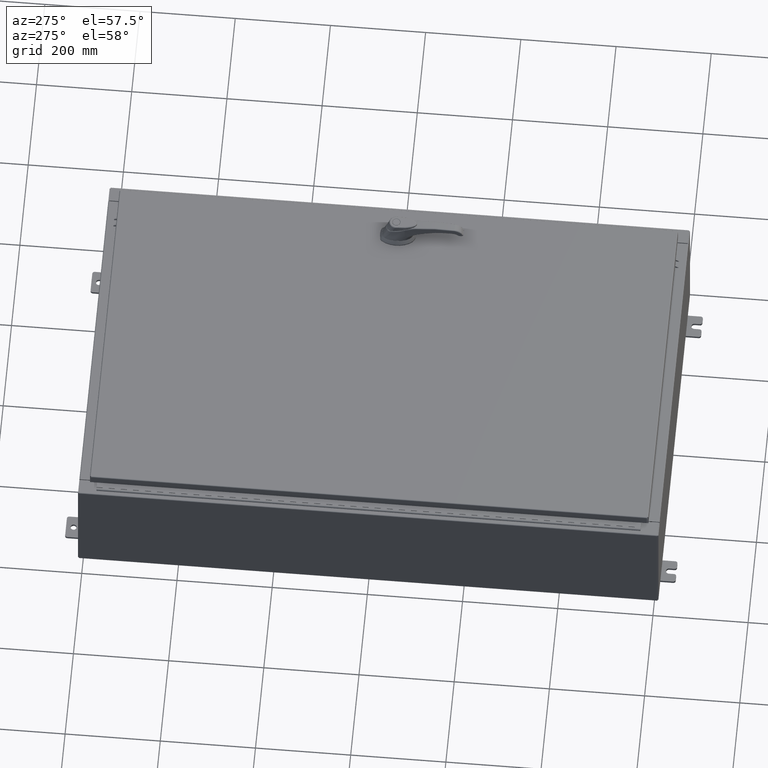
[diagram: clean part render]
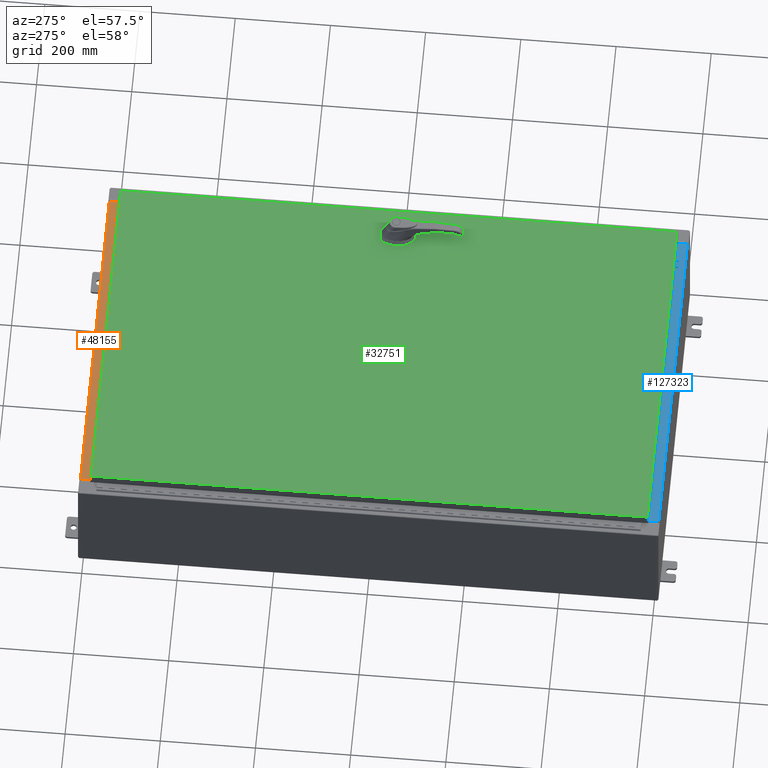
[diagram: same view with three faces highlighted in distinct colors, each labeled with its STEP entity id]
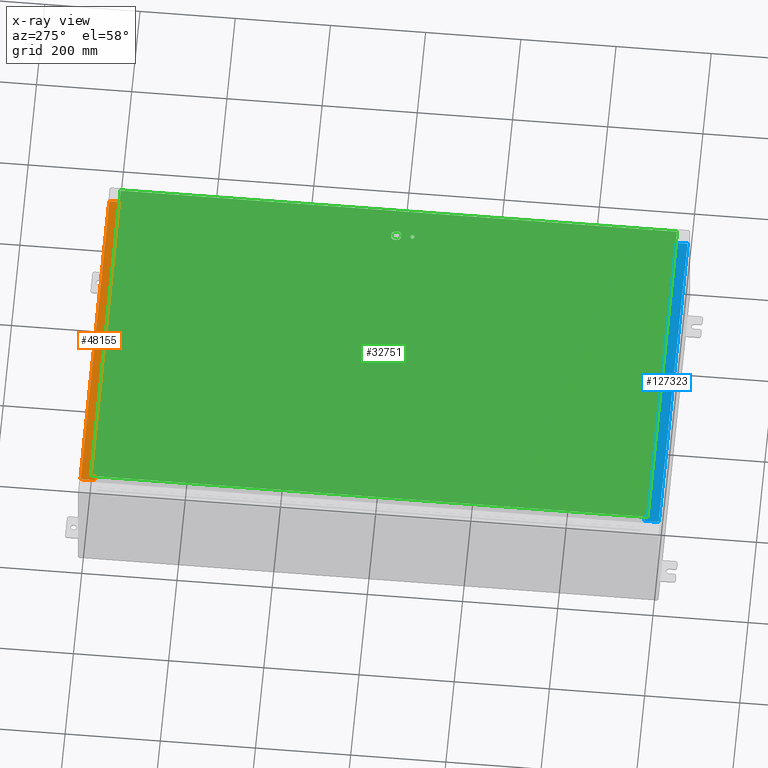
[diagram: x-ray of the same camera — body ghosted, the three highlighted faces saturated]
A machine part, auxiliary view with three faces highlighted in distinct colors.
The next image is the same camera in x-ray (body ghosted, the three faces saturated) — at least one of them is partly hidden behind the body in this view.
Their STEP definitions:

[orange] entity #48155 — the highlighted planar face has unit normal (0, 0, 1).
#4190 = EDGE_CURVE ( 'NONE', #29632, #78011, #5099, .T. ) ;
#5099 = LINE ( 'NONE', #95312, #132149 ) ;
#5529 = CARTESIAN_POINT ( 'NONE',  ( 13.63719999999999800, -0.08770000000000047200, 5.000000000000000000 ) ) ;
#9009 = DIRECTION ( 'NONE',  ( -1.000000000000000000, -4.006464660875052000E-017, 1.428858021605520200E-031 ) ) ;
#12507 = ORIENTED_EDGE ( 'NONE', *, *, #4190, .T. ) ;
#15864 = ORIENTED_EDGE ( 'NONE', *, *, #121329, .F. ) ;
#24144 = PLANE ( 'NONE',  #130623 ) ;
#24595 = DIRECTION ( 'NONE',  ( -0.0000000000000000000, -1.000000000000000000, 3.566381192773190000E-015 ) ) ;
#26260 = VERTEX_POINT ( 'NONE', #105447 ) ;
#29632 = VERTEX_POINT ( 'NONE', #5529 ) ;
#33888 = EDGE_LOOP ( 'NONE', ( #82521, #129009, #15864, #12507 ) ) ;
#40150 = CARTESIAN_POINT ( 'NONE',  ( 13.63719999999999800, -1.287299999999999900, 5.000000000000002700 ) ) ;
#43969 = VECTOR ( 'NONE', #24595, 39.37007874015748100 ) ;
#48155 = ADVANCED_FACE ( 'NONE', ( #102758 ), #24144, .T. ) ;
#49414 = LINE ( 'NONE', #85349, #76944 ) ;
#55150 = DIRECTION ( 'NONE',  ( 0.0000000000000000000, 3.566381192773190000E-015, 1.000000000000000000 ) ) ;
#55163 = CARTESIAN_POINT ( 'NONE',  ( 13.63719999999999800, -1.300299999999999800, 5.000000000000004400 ) ) ;
#71291 = DIRECTION ( 'NONE',  ( -1.000000000000000000, 0.0000000000000000000, 0.0000000000000000000 ) ) ;
#71436 = EDGE_CURVE ( 'NONE', #132170, #26260, #73592, .T. ) ;
#73592 = LINE ( 'NONE', #40150, #80070 ) ;
#75441 = CARTESIAN_POINT ( 'NONE',  ( 13.63719999999999800, -1.287299999999999900, 5.000000000000004400 ) ) ;
#75549 = CARTESIAN_POINT ( 'NONE',  ( 0.0000000000000000000, 1.782631094477737600E-014, 5.000000000000000000 ) ) ;
#76944 = VECTOR ( 'NONE', #95634, 39.37007874015748100 ) ;
#78011 = VERTEX_POINT ( 'NONE', #126827 ) ;
#80070 = VECTOR ( 'NONE', #71291, 39.37007874015748100 ) ;
#82521 = ORIENTED_EDGE ( 'NONE', *, *, #109314, .F. ) ;
#85349 = CARTESIAN_POINT ( 'NONE',  ( -13.63720000000000400, -0.07469999999999973900, 5.000000000000000000 ) ) ;
#95312 = CARTESIAN_POINT ( 'NONE',  ( 3.513669507588167300E-018, -0.08770000000000081900, 5.000000000000000000 ) ) ;
#95634 = DIRECTION ( 'NONE',  ( -0.0000000000000000000, 1.000000000000000000, -3.566381192773190000E-015 ) ) ;
#102758 = FACE_OUTER_BOUND ( 'NONE', #33888, .T. ) ;
#105447 = CARTESIAN_POINT ( 'NONE',  ( -13.63720000000000400, -1.287299999999999200, 5.000000000000004400 ) ) ;
#109314 = EDGE_CURVE ( 'NONE', #26260, #78011, #49414, .T. ) ;
#121329 = EDGE_CURVE ( 'NONE', #29632, #132170, #126114, .T. ) ;
#126114 = LINE ( 'NONE', #55163, #43969 ) ;
#126827 = CARTESIAN_POINT ( 'NONE',  ( -13.63720000000000400, -0.08770000000000081900, 5.000000000000000000 ) ) ;
#127160 = DIRECTION ( 'NONE',  ( 0.0000000000000000000, -1.000000000000000000, 3.566381192773190000E-015 ) ) ;
#129009 = ORIENTED_EDGE ( 'NONE', *, *, #71436, .F. ) ;
#130623 = AXIS2_PLACEMENT_3D ( 'NONE', #75549, #55150, #127160 ) ;
#132149 = VECTOR ( 'NONE', #9009, 39.37007874015748100 ) ;
#132170 = VERTEX_POINT ( 'NONE', #75441 ) ;

[blue] entity #127323 — the highlighted planar face has unit normal (-0, -0, 1).
#2289 = CARTESIAN_POINT ( 'NONE',  ( 0.0000000000000000000, 1.782631094477737600E-014, 5.000000000000000000 ) ) ;
#12595 = DIRECTION ( 'NONE',  ( 0.0000000000000000000, -1.000000000000000000, 3.566381192773190000E-015 ) ) ;
#15502 = CARTESIAN_POINT ( 'NONE',  ( 13.63719999999999800, -0.08770000000000047200, 5.000000000000000000 ) ) ;
#17195 = LINE ( 'NONE', #93339, #41282 ) ;
#20585 = CARTESIAN_POINT ( 'NONE',  ( 13.63719999999999800, -1.287299999999999900, 5.000000000000002700 ) ) ;
#20922 = CARTESIAN_POINT ( 'NONE',  ( -13.63720000000000400, -0.07469999999999973900, 5.000000000000000000 ) ) ;
#26986 = EDGE_CURVE ( 'NONE', #62944, #76798, #100794, .T. ) ;
#33518 = CARTESIAN_POINT ( 'NONE',  ( -13.63720000000000400, -0.08770000000000081900, 5.000000000000000000 ) ) ;
#38080 = EDGE_CURVE ( 'NONE', #72880, #76798, #57800, .T. ) ;
#38153 = ORIENTED_EDGE ( 'NONE', *, *, #38080, .T. ) ;
#39312 = ORIENTED_EDGE ( 'NONE', *, *, #95661, .F. ) ;
#41282 = VECTOR ( 'NONE', #41965, 39.37007874015748100 ) ;
#41965 = DIRECTION ( 'NONE',  ( -0.0000000000000000000, -1.000000000000000000, 3.566381192773190000E-015 ) ) ;
#52138 = DIRECTION ( 'NONE',  ( -1.000000000000000000, -4.006464660875052000E-017, 1.428858021605520200E-031 ) ) ;
#57800 = LINE ( 'NONE', #113875, #85258 ) ;
#62336 = DIRECTION ( 'NONE',  ( -0.0000000000000000000, 1.000000000000000000, -3.566381192773190000E-015 ) ) ;
#62944 = VERTEX_POINT ( 'NONE', #82889 ) ;
#72880 = VERTEX_POINT ( 'NONE', #15502 ) ;
#74283 = DIRECTION ( 'NONE',  ( 0.0000000000000000000, 3.566381192773190000E-015, 1.000000000000000000 ) ) ;
#75976 = VERTEX_POINT ( 'NONE', #131416 ) ;
#76678 = VECTOR ( 'NONE', #62336, 39.37007874015748100 ) ;
#76798 = VERTEX_POINT ( 'NONE', #33518 ) ;
#82889 = CARTESIAN_POINT ( 'NONE',  ( -13.63720000000000400, -1.287299999999999200, 5.000000000000004400 ) ) ;
#85258 = VECTOR ( 'NONE', #52138, 39.37007874015748100 ) ;
#92626 = DIRECTION ( 'NONE',  ( -1.000000000000000000, 0.0000000000000000000, 0.0000000000000000000 ) ) ;
#93339 = CARTESIAN_POINT ( 'NONE',  ( 13.63719999999999800, -1.300299999999999800, 5.000000000000004400 ) ) ;
#94387 = VECTOR ( 'NONE', #92626, 39.37007874015748100 ) ;
#94934 = EDGE_CURVE ( 'NONE', #75976, #62944, #121748, .T. ) ;
#95661 = EDGE_CURVE ( 'NONE', #72880, #75976, #17195, .T. ) ;
#98916 = AXIS2_PLACEMENT_3D ( 'NONE', #2289, #74283, #12595 ) ;
#100794 = LINE ( 'NONE', #20922, #76678 ) ;
#105371 = ORIENTED_EDGE ( 'NONE', *, *, #26986, .F. ) ;
#106041 = ORIENTED_EDGE ( 'NONE', *, *, #94934, .F. ) ;
#113875 = CARTESIAN_POINT ( 'NONE',  ( 3.513669507588167300E-018, -0.08770000000000081900, 5.000000000000000000 ) ) ;
#115173 = PLANE ( 'NONE',  #98916 ) ;
#121748 = LINE ( 'NONE', #20585, #94387 ) ;
#126398 = EDGE_LOOP ( 'NONE', ( #105371, #106041, #39312, #38153 ) ) ;
#127323 = ADVANCED_FACE ( 'NONE', ( #133347 ), #115173, .T. ) ;
#131416 = CARTESIAN_POINT ( 'NONE',  ( 13.63719999999999800, -1.287299999999999900, 5.000000000000004400 ) ) ;
#133347 = FACE_OUTER_BOUND ( 'NONE', #126398, .T. ) ;

[green] entity #32751 — the highlighted planar face has unit normal (0, 0, -1).
#672 = EDGE_CURVE ( 'NONE', #24582, #48429, #19857, .T. ) ;
#939 = CARTESIAN_POINT ( 'NONE',  ( -13.99029999999999800, 23.00630000000001000, -2.048885995248197400E-016 ) ) ;
#2196 = FACE_BOUND ( 'NONE', #66400, .T. ) ;
#3682 = EDGE_CURVE ( 'NONE', #47430, #24582, #43716, .T. ) ;
#4607 = VECTOR ( 'NONE', #46874, 39.37007874015748100 ) ;
#4666 = LINE ( 'NONE', #64334, #110967 ) ;
#5149 = AXIS2_PLACEMENT_3D ( 'NONE', #77985, #16278, #88290 ) ;
#6343 = VERTEX_POINT ( 'NONE', #24098 ) ;
#6467 = CARTESIAN_POINT ( 'NONE',  ( -13.99029999999999800, 23.00630000000000300, -2.048885995248197400E-016 ) ) ;
#6787 = VECTOR ( 'NONE', #93702, 39.37007874015748100 ) ;
#9664 = CARTESIAN_POINT ( 'NONE',  ( 11.57799999999999800, 0.0000000000000000000, 0.0000000000000000000 ) ) ;
#10267 = DIRECTION ( 'NONE',  ( 0.0000000000000000000, -1.000000000000000000, 0.0000000000000000000 ) ) ;
#10632 = DIRECTION ( 'NONE',  ( -0.0000000000000000000, 0.0000000000000000000, 1.000000000000000000 ) ) ;
#11832 = FACE_BOUND ( 'NONE', #123777, .T. ) ;
#12288 = LINE ( 'NONE', #113636, #124945 ) ;
#12452 = DIRECTION ( 'NONE',  ( -0.0000000000000000000, 0.0000000000000000000, 1.000000000000000000 ) ) ;
#12675 = EDGE_CURVE ( 'NONE', #97313, #29899, #12288, .T. ) ;
#13300 = VERTEX_POINT ( 'NONE', #82756 ) ;
#14292 = DIRECTION ( 'NONE',  ( 0.0000000000000000000, 0.0000000000000000000, -1.000000000000000000 ) ) ;
#14727 = PLANE ( 'NONE',  #124587 ) ;
#16278 = DIRECTION ( 'NONE',  ( -0.0000000000000000000, 0.0000000000000000000, 1.000000000000000000 ) ) ;
#19857 = LINE ( 'NONE', #6467, #47197 ) ;
#19965 = DIRECTION ( 'NONE',  ( 1.000000000000000000, 0.0000000000000000000, 0.0000000000000000000 ) ) ;
#21358 = VERTEX_POINT ( 'NONE', #26514 ) ;
#23415 = CARTESIAN_POINT ( 'NONE',  ( 13.99029999999999800, 23.00630000000001000, 1.946441695485787500E-015 ) ) ;
#23548 = CARTESIAN_POINT ( 'NONE',  ( 11.77822737075630700, -0.4029999999999252000, 0.0000000000000000000 ) ) ;
#23991 = CARTESIAN_POINT ( 'NONE',  ( 11.57799999999999800, 0.0000000000000000000, 0.0000000000000000000 ) ) ;
#24098 = CARTESIAN_POINT ( 'NONE',  ( 11.98099999999992700, -0.2002273707563079800, 0.0000000000000000000 ) ) ;
#24582 = VERTEX_POINT ( 'NONE', #939 ) ;
#24701 = VERTEX_POINT ( 'NONE', #63857 ) ;
#25048 = CIRCLE ( 'NONE', #75998, 0.1715000000000011500 ) ;
#25504 = ORIENTED_EDGE ( 'NONE', *, *, #12675, .F. ) ;
#26514 = CARTESIAN_POINT ( 'NONE',  ( 11.17500000000007000, -0.2002273707563079800, 0.0000000000000000000 ) ) ;
#26913 = EDGE_CURVE ( 'NONE', #24701, #125900, #25048, .T. ) ;
#27254 = CARTESIAN_POINT ( 'NONE',  ( -13.99029999999999800, -23.00630000000000300, 1.946441695485787500E-015 ) ) ;
#29899 = VERTEX_POINT ( 'NONE', #71607 ) ;
#32471 = ORIENTED_EDGE ( 'NONE', *, *, #110394, .F. ) ;
#32751 = ADVANCED_FACE ( 'NONE', ( #2196, #108464, #11832 ), #14727, .F. ) ;
#34233 = LINE ( 'NONE', #125596, #61611 ) ;
#34336 = DIRECTION ( 'NONE',  ( 1.000000000000000000, 0.0000000000000000000, 0.0000000000000000000 ) ) ;
#34462 = CARTESIAN_POINT ( 'NONE',  ( 11.57799999999999800, 0.0000000000000000000, 0.0000000000000000000 ) ) ;
#39720 = CARTESIAN_POINT ( 'NONE',  ( 11.40649999999999600, -1.338000000000000100, 0.0000000000000000000 ) ) ;
#41224 = CARTESIAN_POINT ( 'NONE',  ( 11.17500000000007000, 0.0000000000000000000, 0.0000000000000000000 ) ) ;
#41571 = DIRECTION ( 'NONE',  ( -1.000000000000000000, 0.0000000000000000000, 0.0000000000000000000 ) ) ;
#42534 = ORIENTED_EDGE ( 'NONE', *, *, #94074, .F. ) ;
#42953 = CIRCLE ( 'NONE', #78268, 0.4499999999999168000 ) ;
#43716 = LINE ( 'NONE', #62012, #6787 ) ;
#44763 = DIRECTION ( 'NONE',  ( 1.000000000000000000, 0.0000000000000000000, 0.0000000000000000000 ) ) ;
#46874 = DIRECTION ( 'NONE',  ( 5.457491617345625800E-015, -1.000000000000000000, 0.0000000000000000000 ) ) ;
#47197 = VECTOR ( 'NONE', #55709, 39.37007874015748100 ) ;
#47430 = VERTEX_POINT ( 'NONE', #23415 ) ;
#48429 = VERTEX_POINT ( 'NONE', #27254 ) ;
#48827 = VERTEX_POINT ( 'NONE', #23548 ) ;
#50502 = ORIENTED_EDGE ( 'NONE', *, *, #126944, .F. ) ;
#52174 = CARTESIAN_POINT ( 'NONE',  ( 0.0000000000000000000, -0.4029999999999252000, 0.0000000000000000000 ) ) ;
#52181 = CARTESIAN_POINT ( 'NONE',  ( 11.77822737075630700, 0.4029999999999252000, 0.0000000000000000000 ) ) ;
#55709 = DIRECTION ( 'NONE',  ( 0.0000000000000000000, -1.000000000000000000, 0.0000000000000000000 ) ) ;
#56215 = ORIENTED_EDGE ( 'NONE', *, *, #69657, .T. ) ;
#57126 = LINE ( 'NONE', #41224, #102275 ) ;
#61611 = VECTOR ( 'NONE', #74411, 39.37007874015748100 ) ;
#62012 = CARTESIAN_POINT ( 'NONE',  ( 13.99029999999999800, 23.00630000000001000, 1.946441695485787500E-015 ) ) ;
#63857 = CARTESIAN_POINT ( 'NONE',  ( 11.74949999999999900, -1.338000000000000100, 0.0000000000000000000 ) ) ;
#64245 = CARTESIAN_POINT ( 'NONE',  ( 11.37777262924368800, -0.4029999999999252000, 0.0000000000000000000 ) ) ;
#64334 = CARTESIAN_POINT ( 'NONE',  ( -13.99029999999999800, -23.00630000000000300, 1.946441695485787500E-015 ) ) ;
#64628 = ORIENTED_EDGE ( 'NONE', *, *, #81594, .T. ) ;
#65981 = CARTESIAN_POINT ( 'NONE',  ( 0.0000000000000000000, 0.0000000000000000000, 0.0000000000000000000 ) ) ;
#66400 = EDGE_LOOP ( 'NONE', ( #97848, #103302 ) ) ;
#67998 = CIRCLE ( 'NONE', #5149, 0.1715000000000011500 ) ;
#68206 = EDGE_LOOP ( 'NONE', ( #64628, #117679, #122448, #88682 ) ) ;
#68608 = VERTEX_POINT ( 'NONE', #64245 ) ;
#68622 = AXIS2_PLACEMENT_3D ( 'NONE', #34462, #106550, #44763 ) ;
#69657 = EDGE_CURVE ( 'NONE', #84981, #6343, #86737, .T. ) ;
#70014 = EDGE_CURVE ( 'NONE', #68608, #48827, #112401, .T. ) ;
#70119 = AXIS2_PLACEMENT_3D ( 'NONE', #23991, #96001, #34336 ) ;
#71607 = CARTESIAN_POINT ( 'NONE',  ( 11.37777262924368800, 0.4029999999999252000, 0.0000000000000000000 ) ) ;
#72291 = CARTESIAN_POINT ( 'NONE',  ( 11.57799999999999800, -1.338000000000000100, 0.0000000000000000000 ) ) ;
#74151 = CARTESIAN_POINT ( 'NONE',  ( 11.57799999999999800, 0.0000000000000000000, 0.0000000000000000000 ) ) ;
#74411 = DIRECTION ( 'NONE',  ( 0.0000000000000000000, 1.000000000000000000, 0.0000000000000000000 ) ) ;
#74835 = EDGE_CURVE ( 'NONE', #108694, #21358, #57126, .T. ) ;
#75998 = AXIS2_PLACEMENT_3D ( 'NONE', #72291, #10632, #82667 ) ;
#76946 = CARTESIAN_POINT ( 'NONE',  ( 11.17500000000007000, 0.2002273707563079800, 0.0000000000000000000 ) ) ;
#77985 = CARTESIAN_POINT ( 'NONE',  ( 11.57799999999999800, -1.338000000000000100, 0.0000000000000000000 ) ) ;
#78268 = AXIS2_PLACEMENT_3D ( 'NONE', #9664, #81718, #19965 ) ;
#80463 = CIRCLE ( 'NONE', #101511, 0.4499999999999168000 ) ;
#81594 = EDGE_CURVE ( 'NONE', #48429, #13300, #4666, .T. ) ;
#81718 = DIRECTION ( 'NONE',  ( -0.0000000000000000000, 0.0000000000000000000, 1.000000000000000000 ) ) ;
#82667 = DIRECTION ( 'NONE',  ( 1.000000000000000000, 0.0000000000000000000, 0.0000000000000000000 ) ) ;
#82756 = CARTESIAN_POINT ( 'NONE',  ( 13.99029999999999800, -23.00630000000000300, -2.048885995248197400E-016 ) ) ;
#84518 = DIRECTION ( 'NONE',  ( 1.000000000000000000, 0.0000000000000000000, 0.0000000000000000000 ) ) ;
#84661 = ORIENTED_EDGE ( 'NONE', *, *, #102707, .F. ) ;
#84981 = VERTEX_POINT ( 'NONE', #122391 ) ;
#86737 = LINE ( 'NONE', #108645, #4607 ) ;
#86754 = DIRECTION ( 'NONE',  ( -1.000000000000000000, 0.0000000000000000000, -0.0000000000000000000 ) ) ;
#88290 = DIRECTION ( 'NONE',  ( 1.000000000000000000, 0.0000000000000000000, 0.0000000000000000000 ) ) ;
#88682 = ORIENTED_EDGE ( 'NONE', *, *, #672, .T. ) ;
#93702 = DIRECTION ( 'NONE',  ( -1.000000000000000000, -0.0000000000000000000, -0.0000000000000000000 ) ) ;
#94074 = EDGE_CURVE ( 'NONE', #84981, #97313, #42953, .T. ) ;
#96001 = DIRECTION ( 'NONE',  ( -0.0000000000000000000, 0.0000000000000000000, 1.000000000000000000 ) ) ;
#97313 = VERTEX_POINT ( 'NONE', #52181 ) ;
#97848 = ORIENTED_EDGE ( 'NONE', *, *, #26913, .F. ) ;
#101511 = AXIS2_PLACEMENT_3D ( 'NONE', #74151, #12452, #84518 ) ;
#102275 = VECTOR ( 'NONE', #10267, 39.37007874015748100 ) ;
#102707 = EDGE_CURVE ( 'NONE', #21358, #68608, #133003, .T. ) ;
#103302 = ORIENTED_EDGE ( 'NONE', *, *, #115716, .F. ) ;
#105804 = DIRECTION ( 'NONE',  ( 1.000000000000000000, -0.0000000000000000000, -0.0000000000000000000 ) ) ;
#106550 = DIRECTION ( 'NONE',  ( -0.0000000000000000000, 0.0000000000000000000, 1.000000000000000000 ) ) ;
#108464 = FACE_OUTER_BOUND ( 'NONE', #68206, .T. ) ;
#108645 = CARTESIAN_POINT ( 'NONE',  ( 11.98099999999992500, 6.538620706741752400E-014, 0.0000000000000000000 ) ) ;
#108694 = VERTEX_POINT ( 'NONE', #76946 ) ;
#110394 = EDGE_CURVE ( 'NONE', #29899, #108694, #129731, .T. ) ;
#110967 = VECTOR ( 'NONE', #105804, 39.37007874015748100 ) ;
#112401 = LINE ( 'NONE', #52174, #115636 ) ;
#113636 = CARTESIAN_POINT ( 'NONE',  ( 0.0000000000000000000, 0.4029999999999252000, 0.0000000000000000000 ) ) ;
#113830 = EDGE_CURVE ( 'NONE', #13300, #47430, #34233, .T. ) ;
#115187 = ORIENTED_EDGE ( 'NONE', *, *, #74835, .F. ) ;
#115636 = VECTOR ( 'NONE', #124173, 39.37007874015748100 ) ;
#115716 = EDGE_CURVE ( 'NONE', #125900, #24701, #67998, .T. ) ;
#117679 = ORIENTED_EDGE ( 'NONE', *, *, #113830, .T. ) ;
#122391 = CARTESIAN_POINT ( 'NONE',  ( 11.98099999999992500, 0.2002273707563075900, 0.0000000000000000000 ) ) ;
#122448 = ORIENTED_EDGE ( 'NONE', *, *, #3682, .T. ) ;
#123777 = EDGE_LOOP ( 'NONE', ( #56215, #50502, #132140, #84661, #115187, #32471, #25504, #42534 ) ) ;
#124173 = DIRECTION ( 'NONE',  ( 1.000000000000000000, 0.0000000000000000000, 0.0000000000000000000 ) ) ;
#124587 = AXIS2_PLACEMENT_3D ( 'NONE', #65981, #14292, #86754 ) ;
#124945 = VECTOR ( 'NONE', #41571, 39.37007874015748100 ) ;
#125596 = CARTESIAN_POINT ( 'NONE',  ( 13.99029999999999800, -23.00630000000000300, -2.048885995248197400E-016 ) ) ;
#125900 = VERTEX_POINT ( 'NONE', #39720 ) ;
#126944 = EDGE_CURVE ( 'NONE', #48827, #6343, #80463, .T. ) ;
#129731 = CIRCLE ( 'NONE', #68622, 0.4499999999999168000 ) ;
#132140 = ORIENTED_EDGE ( 'NONE', *, *, #70014, .F. ) ;
#133003 = CIRCLE ( 'NONE', #70119, 0.4499999999999168000 ) ;